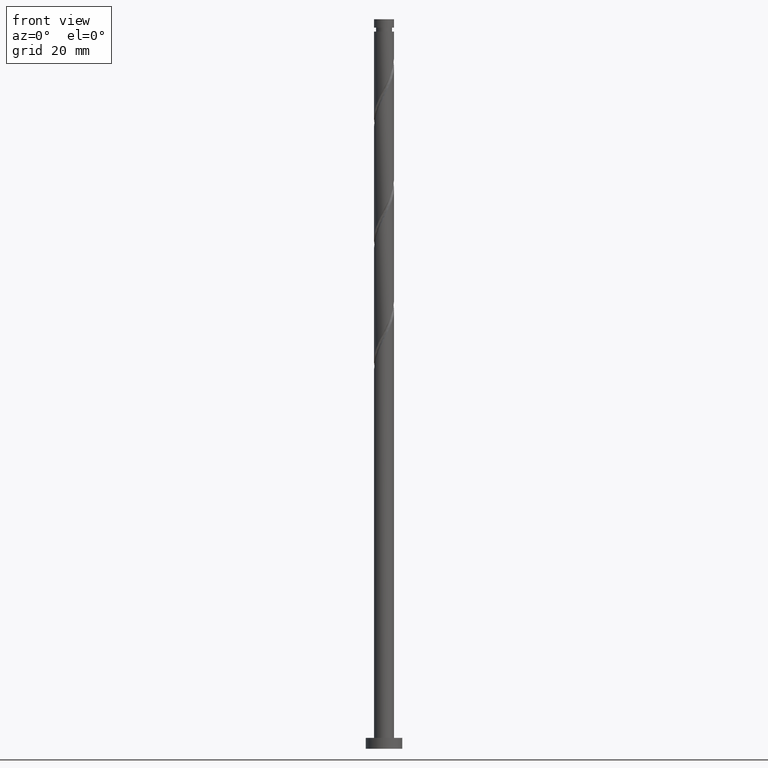
[diagram: clean part render]
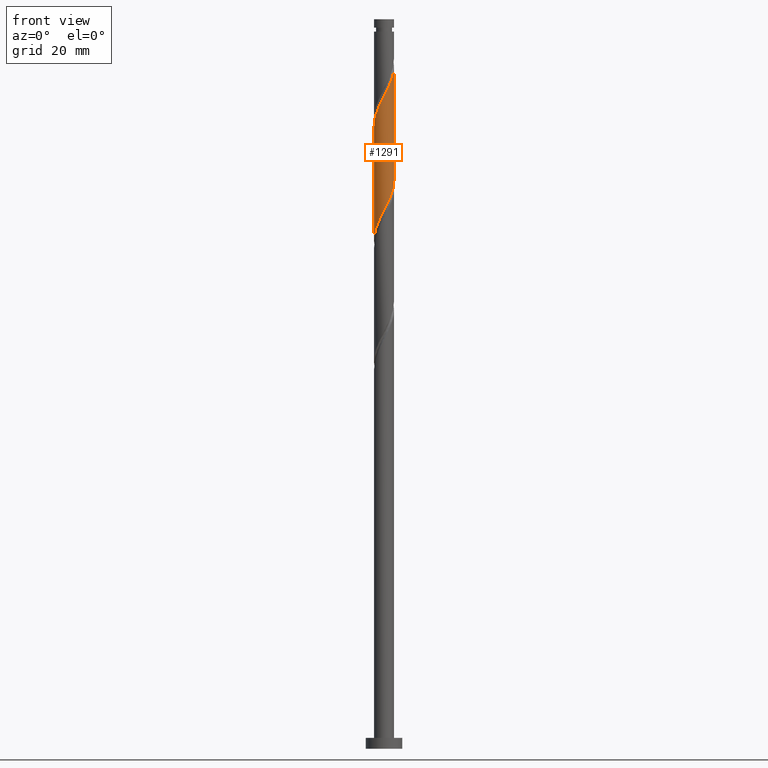
[diagram: same view with one face highlighted and labeled with its STEP entity id]
A machine part, front view. The second image highlights one B-rep face of the part: STEP entity #1291.
In plain terms, the highlighted cylindrical surface (edge-blend (fillet) strip) has radius 2.75 mm, axis along (-0, -0, -1).
Its self-contained STEP definition (entity closure, byte-faithful):
#34 = CARTESIAN_POINT ( 'NONE',  ( 2.292612075483180689, -1.518693475112314895, 184.1044125225881203 ) ) ;
#120 = CARTESIAN_POINT ( 'NONE',  ( 0.1689210922673410054, -2.744807035947555818, 147.9933014114770629 ) ) ;
#127 = CARTESIAN_POINT ( 'NONE',  ( 2.300112255140786210, -1.550180550263816182, 152.8544125225881203 ) ) ;
#158 = CARTESIAN_POINT ( 'NONE',  ( 2.722568152255373075, -0.5302817939452977303, 186.1877458559214631 ) ) ;
#166 = CARTESIAN_POINT ( 'NONE',  ( -2.695000000000002949, -0.5472430904086424963, 171.6044125225881771 ) ) ;
#189 = CARTESIAN_POINT ( 'NONE',  ( -0.5302817939452965090, -2.722568152255373075, 177.8544125225880919 ) ) ;
#209 = CARTESIAN_POINT ( 'NONE',  ( -2.750000000000000000, 0.000000000000000000, 200.0000000000000000 ) ) ;
#244 = CARTESIAN_POINT ( 'NONE',  ( -1.226113560835244920, -2.461533167750520779, 145.2155236336992630 ) ) ;
#263 = CARTESIAN_POINT ( 'NONE',  ( 0.000000000000000000, 0.000000000000000000, 200.0000000000000000 ) ) ;
#308 = EDGE_CURVE ( 'NONE', #1634, #1069, #1420, .T. ) ;
#311 = CARTESIAN_POINT ( 'NONE',  ( 2.092672286414963612, -1.820521580848698751, 183.4099680781436916 ) ) ;
#337 = CARTESIAN_POINT ( 'NONE',  ( -2.750000000000003553, 2.190729420990322282E-15, 170.5408458673780956 ) ) ;
#365 = ORIENTED_EDGE ( 'NONE', *, *, #922, .F. ) ;
#375 = CARTESIAN_POINT ( 'NONE',  ( 2.060316917994739594, -1.821426418339389119, 152.1599680781436348 ) ) ;
#391 = ORIENTED_EDGE ( 'NONE', *, *, #726, .F. ) ;
#476 = ORIENTED_EDGE ( 'NONE', *, *, #1360, .F. ) ;
#508 = DIRECTION ( 'NONE',  ( -1.000000000000000000, 0.000000000000000000, 0.000000000000000000 ) ) ;
#517 = CARTESIAN_POINT ( 'NONE',  ( 0.8735735816606100546, -2.607560008403383645, 149.3821903003658917 ) ) ;
#523 = CARTESIAN_POINT ( 'NONE',  ( 1.518693475112310010, -2.292612075483179357, 150.7710791892547775 ) ) ;
#569 = CARTESIAN_POINT ( 'NONE',  ( 1.821426418339389786, -2.060316917994744479, 182.7155236336992346 ) ) ;
#650 = CARTESIAN_POINT ( 'NONE',  ( 2.750000000000000000, 3.162725409825637737E-15, 156.0013125111315446 ) ) ;
#652 = CARTESIAN_POINT ( 'NONE',  ( 2.750000000000002665, -1.495378444361994384E-16, 187.2075125340446959 ) ) ;
#654 = CARTESIAN_POINT ( 'NONE',  ( -2.492551864551397323, -1.216865369375926598, 141.7433014114770629 ) ) ;
#661 = CARTESIAN_POINT ( 'NONE',  ( 2.461533167750520334, -1.226113560835246030, 153.5488569670325489 ) ) ;
#687 = CARTESIAN_POINT ( 'NONE',  ( 2.750000000000000000, 3.367778697655221012E-16, 200.0000000000000000 ) ) ;
#701 = CARTESIAN_POINT ( 'NONE',  ( 2.607560008403386753, -0.8735735816606140514, 185.4933014114770629 ) ) ;
#711 = CARTESIAN_POINT ( 'NONE',  ( -1.216865369375929928, -2.492551864551399543, 176.4655236336992346 ) ) ;
#726 = EDGE_CURVE ( 'NONE', #855, #1069, #1285, .T. ) ;
#785 = CARTESIAN_POINT ( 'NONE',  ( 1.216865369375926598, -2.492551864551397323, 150.0766347448103772 ) ) ;
#791 = CARTESIAN_POINT ( 'NONE',  ( -1.550180550263815737, -2.300112255140786655, 144.5210791892548627 ) ) ;
#794 = DIRECTION ( 'NONE',  ( -0.000000000000000000, -0.000000000000000000, -1.000000000000000000 ) ) ;
#798 = CARTESIAN_POINT ( 'NONE',  ( -2.092672286414962723, -1.820521580848695198, 143.1321903003658917 ) ) ;
#816 = CARTESIAN_POINT ( 'NONE',  ( 2.492551864551398655, -1.216865369375930150, 184.7988569670325489 ) ) ;
#841 = DIRECTION ( 'NONE',  ( -0.000000000000000000, -0.000000000000000000, -1.000000000000000000 ) ) ;
#855 = VERTEX_POINT ( 'NONE', #951 ) ;
#856 = CARTESIAN_POINT ( 'NONE',  ( -1.518693475112313784, -2.292612075483181577, 175.7710791892548343 ) ) ;
#922 = EDGE_CURVE ( 'NONE', #1634, #1206, #932, .T. ) ;
#928 = CARTESIAN_POINT ( 'NONE',  ( -0.5472430904086426073, -2.694999999999998952, 146.6044125225881203 ) ) ;
#932 =( BOUNDED_CURVE ( )  B_SPLINE_CURVE ( 2, ( #1658, #1401, #166, #990, #1355, #1524, #1119, #1235, #856, #711, #998, #189, #1366, #1392, #1098, #1667, #1506, #1538, #569, #311, #34, #816, #701, #158, #1260, #1109, #1515 ),
 .UNSPECIFIED., .F., .T. ) 
 B_SPLINE_CURVE_WITH_KNOTS ( ( 3, 2, 2, 2, 2, 2, 2, 2, 2, 2, 2, 2, 2, 3 ),
 ( 0.5545317669814461281, 0.5625000000000000000, 0.5729166666666667407, 0.5833333333333332593, 0.5937500000000000000, 0.6041666666666667407, 0.6145833333333332593, 0.6250000000000000000, 0.6354166666666667407, 0.6458333333333332593, 0.6562500000000000000, 0.6666666666666667407, 0.6770833333333332593, 0.6795317669814461281 ),
 .UNSPECIFIED. ) 
 CURVE ( )  GEOMETRIC_REPRESENTATION_ITEM ( )  RATIONAL_B_SPLINE_CURVE ( ( 0.9062941362546530488, 0.9031415850403571310, 0.9090909090909324863, 0.9013135103398509651, 0.9090909090909324863, 0.9013135103398509651, 0.9090909090909324863, 0.9013135103398509651, 0.9090909090909324863, 0.9013135103398509651, 0.9090909090909324863, 0.9013135103398509651, 0.9090909090909324863, 0.9013135103398509651, 0.9090909090909324863, 0.9013135103398509651, 0.9090909090909324863, 0.9013135103398509651, 0.9090909090909324863, 0.9013135103398509651, 0.9090909090909324863, 0.9013135103398509651, 0.9090909090909324863, 0.9013135103398509651, 0.9090909090909324863, 0.9072628343904263204, 0.9062941362546530488 ) ) 
 REPRESENTATION_ITEM ( '' )  );
#934 = CARTESIAN_POINT ( 'NONE',  ( 2.622954080360256235, -0.9020465714066764340, 154.2433014114770629 ) ) ;
#939 = VECTOR ( 'NONE', #841, 1000.000000000000000 ) ;
#951 = CARTESIAN_POINT ( 'NONE',  ( 2.750000000000000000, 3.162725409825637737E-15, 156.0013125111315162 ) ) ;
#965 = AXIS2_PLACEMENT_3D ( 'NONE', #263, #794, #508 ) ;
#971 = ORIENTED_EDGE ( 'NONE', *, *, #308, .T. ) ;
#990 = CARTESIAN_POINT ( 'NONE',  ( -2.622954080360260232, -0.9020465714066743246, 172.2988569670325774 ) ) ;
#998 = CARTESIAN_POINT ( 'NONE',  ( -0.8735735816606137183, -2.607560008403386309, 177.1599680781437200 ) ) ;
#1064 = CARTESIAN_POINT ( 'NONE',  ( -2.744807035947555818, -0.1689210922673418935, 139.6599680781437200 ) ) ;
#1069 = VERTEX_POINT ( 'NONE', #1676 ) ;
#1070 = CARTESIAN_POINT ( 'NONE',  ( 0.5302817939452934004, -2.722568152255370855, 148.6877458559215199 ) ) ;
#1080 = CARTESIAN_POINT ( 'NONE',  ( -2.292612075483178469, -1.518693475112311342, 142.4377458559214631 ) ) ;
#1098 = CARTESIAN_POINT ( 'NONE',  ( 0.5472430904086423853, -2.695000000000002949, 179.9377458559214631 ) ) ;
#1109 = CARTESIAN_POINT ( 'NONE',  ( 2.750000000000003109, -0.08454036705860706880, 187.0443488460165895 ) ) ;
#1119 = CARTESIAN_POINT ( 'NONE',  ( -2.060316917994743591, -1.821426418339390008, 174.3821903003659202 ) ) ;
#1184 = FACE_OUTER_BOUND ( 'NONE', #1523, .T. ) ;
#1197 = CARTESIAN_POINT ( 'NONE',  ( -1.821426418339388675, -2.060316917994740038, 143.8266347448103488 ) ) ;
#1201 = CARTESIAN_POINT ( 'NONE',  ( -2.750000000000000888, -0.08454036705859917233, 139.4978095324930507 ) ) ;
#1206 = VERTEX_POINT ( 'NONE', #652 ) ;
#1235 = CARTESIAN_POINT ( 'NONE',  ( -1.820521580848698751, -2.092672286414963612, 175.0766347448102920 ) ) ;
#1260 = CARTESIAN_POINT ( 'NONE',  ( 2.744807035947559370, -0.1689210922673450299, 186.8821903003658633 ) ) ;
#1282 = DIRECTION ( 'NONE',  ( -0.000000000000000000, -0.000000000000000000, -1.000000000000000000 ) ) ;
#1285 =( BOUNDED_CURVE ( )  B_SPLINE_CURVE ( 2, ( #650, #1464, #1595, #934, #661, #127, #375, #1611, #523, #785, #517, #1070, #120, #1731, #928, #1484, #244, #791, #1197, #798, #1080, #654, #1455, #1326, #1064, #1201, #1478 ),
 .UNSPECIFIED., .F., .T. ) 
 B_SPLINE_CURVE_WITH_KNOTS ( ( 3, 2, 2, 2, 2, 2, 2, 2, 2, 2, 2, 2, 2, 3 ),
 ( 0.5545317669814463502, 0.5625000000000000000, 0.5729166666666666297, 0.5833333333333333703, 0.5937500000000000000, 0.6041666666666666297, 0.6145833333333333703, 0.6250000000000000000, 0.6354166666666666297, 0.6458333333333333703, 0.6562500000000000000, 0.6666666666666666297, 0.6770833333333333703, 0.6795317669814463502 ),
 .UNSPECIFIED. ) 
 CURVE ( )  GEOMETRIC_REPRESENTATION_ITEM ( )  RATIONAL_B_SPLINE_CURVE ( ( 0.9062941362546472757, 0.9031415850403515799, 0.9090909090909271573, 0.9013135103398454140, 0.9090909090909271573, 0.9013135103398454140, 0.9090909090909271573, 0.9013135103398454140, 0.9090909090909271573, 0.9013135103398454140, 0.9090909090909271573, 0.9013135103398454140, 0.9090909090909271573, 0.9013135103398454140, 0.9090909090909271573, 0.9013135103398454140, 0.9090909090909271573, 0.9013135103398454140, 0.9090909090909271573, 0.9013135103398454140, 0.9090909090909271573, 0.9013135103398454140, 0.9090909090909271573, 0.9013135103398454140, 0.9090909090909271573, 0.9072628343904207693, 0.9062941362546472757 ) ) 
 REPRESENTATION_ITEM ( '' )  );
#1291 = ADVANCED_FACE ( 'NONE', ( #1184 ), #1745, .T. ) ;
#1326 = CARTESIAN_POINT ( 'NONE',  ( -2.722568152255370855, -0.5302817939452945106, 140.3544125225881487 ) ) ;
#1355 = CARTESIAN_POINT ( 'NONE',  ( -2.461533167750525664, -1.226113560835245364, 172.9933014114770060 ) ) ;
#1360 = EDGE_CURVE ( 'NONE', #1206, #855, #1654, .T. ) ;
#1366 = CARTESIAN_POINT ( 'NONE',  ( -0.1689210922673435034, -2.744807035947559370, 178.5488569670326058 ) ) ;
#1392 = CARTESIAN_POINT ( 'NONE',  ( 0.1924396094106093635, -2.767045919639746554, 179.2433014114770629 ) ) ;
#1401 = CARTESIAN_POINT ( 'NONE',  ( -2.750000000000003997, -0.2763853991962806900, 171.0742722365673103 ) ) ;
#1420 = LINE ( 'NONE', #209, #1476 ) ;
#1455 = CARTESIAN_POINT ( 'NONE',  ( -2.607560008403383645, -0.8735735816606104986, 141.0488569670325774 ) ) ;
#1464 = CARTESIAN_POINT ( 'NONE',  ( 2.750000000000000000, -0.2763853991962865742, 155.4678861419422446 ) ) ;
#1476 = VECTOR ( 'NONE', #1282, 1000.000000000000000 ) ;
#1478 = CARTESIAN_POINT ( 'NONE',  ( -2.750000000000000888, 3.813215033123109960E-15, 139.3346458444648874 ) ) ;
#1484 = CARTESIAN_POINT ( 'NONE',  ( -0.9020465714066752128, -2.622954080360256679, 145.9099680781437485 ) ) ;
#1506 = CARTESIAN_POINT ( 'NONE',  ( 1.226113560835244698, -2.461533167750525664, 181.3266347448104057 ) ) ;
#1515 = CARTESIAN_POINT ( 'NONE',  ( 2.750000000000002665, -1.495378444361994384E-16, 187.2075125340446959 ) ) ;
#1523 = EDGE_LOOP ( 'NONE', ( #476, #365, #971, #391 ) ) ;
#1524 = CARTESIAN_POINT ( 'NONE',  ( -2.300112255140790207, -1.550180550263815960, 173.6877458559214631 ) ) ;
#1538 = CARTESIAN_POINT ( 'NONE',  ( 1.550180550263815071, -2.300112255140790651, 182.0210791892547491 ) ) ;
#1595 = CARTESIAN_POINT ( 'NONE',  ( 2.694999999999998952, -0.5472430904086427184, 154.9377458559214915 ) ) ;
#1611 = CARTESIAN_POINT ( 'NONE',  ( 1.820521580848694754, -2.092672286414962723, 151.4655236336993198 ) ) ;
#1634 = VERTEX_POINT ( 'NONE', #337 ) ;
#1654 = LINE ( 'NONE', #687, #939 ) ;
#1658 = CARTESIAN_POINT ( 'NONE',  ( -2.750000000000003553, 2.190729420990322282E-15, 170.5408458673780956 ) ) ;
#1667 = CARTESIAN_POINT ( 'NONE',  ( 0.9020465714066742136, -2.622954080360260232, 180.6321903003658917 ) ) ;
#1676 = CARTESIAN_POINT ( 'NONE',  ( -2.750000000000000888, 3.813215033123109960E-15, 139.3346458444648874 ) ) ;
#1731 = CARTESIAN_POINT ( 'NONE',  ( -0.1924396094106114175, -2.767045919639743445, 147.2988569670326058 ) ) ;
#1745 = CYLINDRICAL_SURFACE ( 'NONE', #965, 2.750000000000000000 ) ;